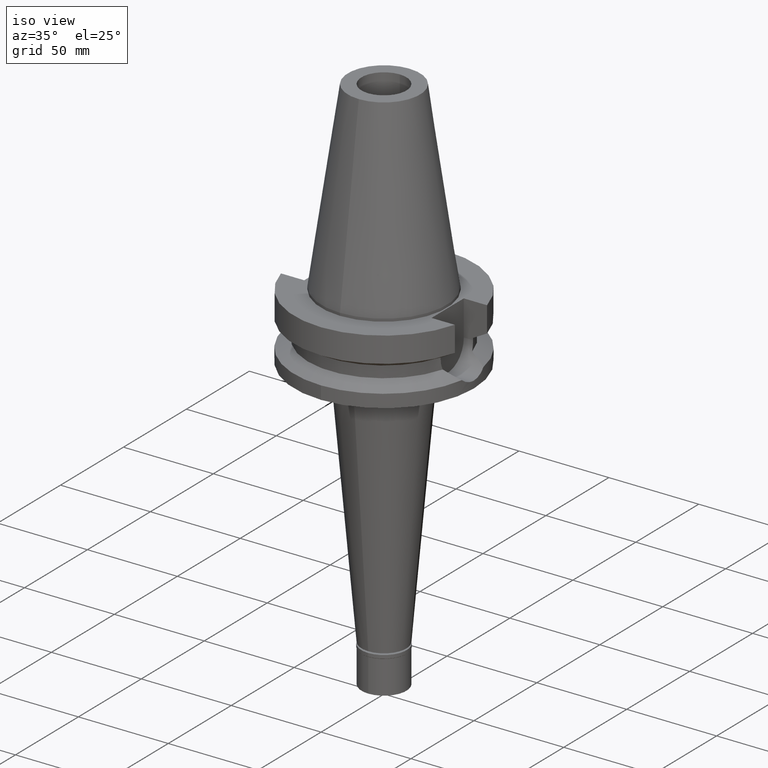
[diagram: clean part render]
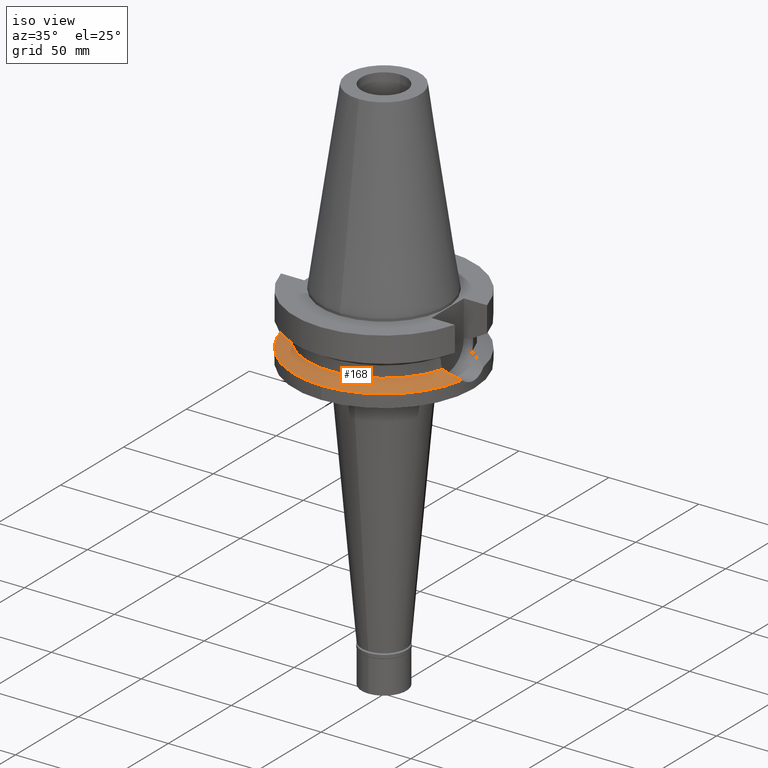
[diagram: same view with one face highlighted and labeled with its STEP entity id]
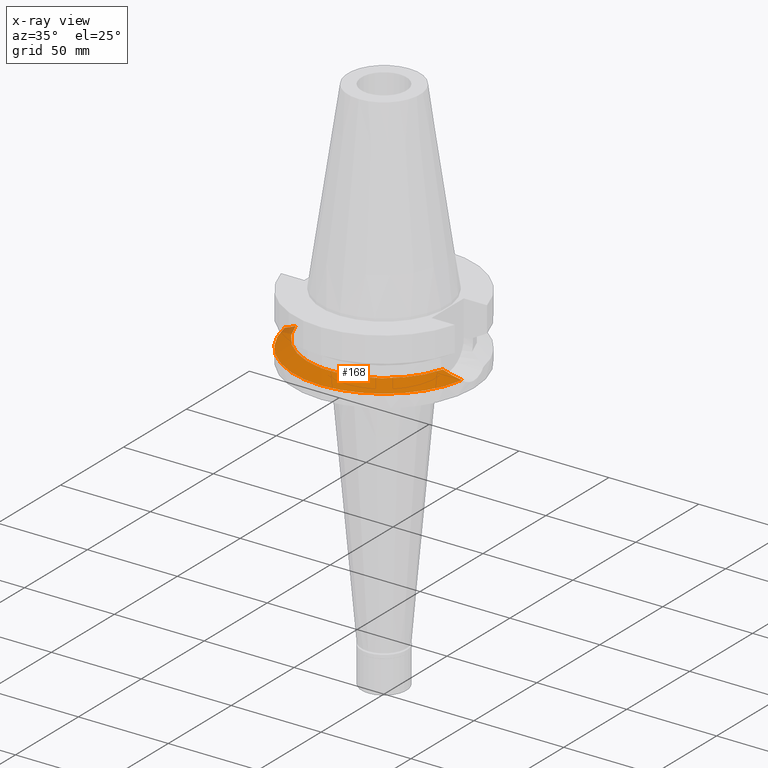
[diagram: x-ray of the same camera — body ghosted, the highlighted face saturated]
A machine part, iso view. The second image highlights one B-rep face of the part: STEP entity #168.
The next image is the same camera in x-ray: the body ghosted, the highlighted face saturated — about 2% of this face is hidden behind the body in this view.
In plain terms, the highlighted conical surface has half-angle 60 deg.
Its self-contained STEP definition (entity closure, byte-faithful):
#19 = DIRECTION ( 'NONE',  ( 0.0000000000000000000, -1.000000000000000000, 0.0000000000000000000 ) ) ;
#21 = CARTESIAN_POINT ( 'NONE',  ( -45.51153680948555547, -10.31571076455013269, -28.81225329104412580 ) ) ;
#77 = B_SPLINE_CURVE_WITH_KNOTS ( 'NONE', 3,
 ( #1958, #921, #1680, #1418, #906, #2631, #217, #1974, #2458, #2441, #2953, #2665, #1924, #2918, #2904 ),
 .UNSPECIFIED., .F., .F.,
 ( 4, 2, 2, 1, 1, 1, 2, 2, 4 ),
 ( 0.0000000000000000000, 0.2499999999999963363, 0.3749999999999946709, 0.4374999999999937828, 0.4687499999999923950, 0.4843749999999920064, 0.4921874999999918954, 0.4999999999999917843, 1.000000000000000000 ),
 .UNSPECIFIED. ) ;
#168 = ADVANCED_FACE ( 'NONE', ( #202 ), #3143, .T. ) ;
#172 = DIRECTION ( 'NONE',  ( 0.0000000000000000000, 0.0000000000000000000, -1.000000000000000000 ) ) ;
#194 = B_SPLINE_CURVE_WITH_KNOTS ( 'NONE', 3,
 ( #1737, #1984, #2962, #709, #222, #2720, #2478, #1191, #21, #1997, #759, #2733, #519, #582, #1317, #1835 ),
 .UNSPECIFIED., .F., .F.,
 ( 4, 2, 2, 1, 1, 1, 1, 2, 2, 4 ),
 ( 0.0000000000000000000, 0.2499999999999817923, 0.3749999999999735767, 0.4374999999999696909, 0.4687499999999678590, 0.4843749999999671374, 0.4921874999999659717, 0.4960937499999655831, 0.4999999999999652500, 1.000000000000000000 ),
 .UNSPECIFIED. ) ;
#202 = FACE_OUTER_BOUND ( 'NONE', #1254, .T. ) ;
#205 = EDGE_CURVE ( 'NONE', #2365, #485, #3086, .T. ) ;
#217 = CARTESIAN_POINT ( 'NONE',  ( 44.89770569920985110, -10.54372386778587511, -28.49665966321981614 ) ) ;
#221 = DIRECTION ( 'NONE',  ( 0.0000000000000000000, 0.0000000000000000000, 1.000000000000000000 ) ) ;
#222 = CARTESIAN_POINT ( 'NONE',  ( -46.77591822485125306, -9.802183307149345382, -29.46222612251301953 ) ) ;
#285 = CARTESIAN_POINT ( 'NONE',  ( -40.85052569294000335, -11.72538061688000077, -26.40718074535000426 ) ) ;
#343 = VERTEX_POINT ( 'NONE', #948 ) ;
#354 = CARTESIAN_POINT ( 'NONE',  ( 0.0000000000000000000, 0.0000000000000000000, -30.73730776426999967 ) ) ;
#401 = EDGE_CURVE ( 'NONE', #1060, #343, #926, .T. ) ;
#450 = AXIS2_PLACEMENT_3D ( 'NONE', #354, #1820, #1606 ) ;
#485 = VERTEX_POINT ( 'NONE', #2257 ) ;
#519 = CARTESIAN_POINT ( 'NONE',  ( -45.36036240325719149, -10.37294733292019799, -28.73449114628315115 ) ) ;
#581 = CARTESIAN_POINT ( 'NONE',  ( 0.0000000000000000000, -50.00000000000000000, -30.73730776426999967 ) ) ;
#582 = CARTESIAN_POINT ( 'NONE',  ( -44.04299288609625762, -10.86792182048281141, -28.05681832449124258 ) ) ;
#648 = EDGE_CURVE ( 'NONE', #485, #1060, #194, .T. ) ;
#658 = CARTESIAN_POINT ( 'NONE',  ( 0.0000000000000000000, 0.0000000000000000000, -28.57224425480999841 ) ) ;
#708 = DIRECTION ( 'NONE',  ( 0.0000000000000000000, -1.000000000000000000, 0.0000000000000000000 ) ) ;
#709 = CARTESIAN_POINT ( 'NONE',  ( -47.11300662444745768, -9.652607655461894254, -29.63533319679338973 ) ) ;
#759 = CARTESIAN_POINT ( 'NONE',  ( -45.39637948587878213, -10.35937567599534681, -28.75301847058063487 ) ) ;
#906 = CARTESIAN_POINT ( 'NONE',  ( 44.08855951610289736, -10.82339110689108175, -28.08013241714420971 ) ) ;
#909 = DIRECTION ( 'NONE',  ( 0.0000000000000000000, -1.000000000000000000, 0.0000000000000000000 ) ) ;
#921 = CARTESIAN_POINT ( 'NONE',  ( 41.72693822474042946, -11.52185270305650100, -26.86112029419637537 ) ) ;
#926 = CIRCLE ( 'NONE', #1345, 42.50000000000000000 ) ;
#948 = CARTESIAN_POINT ( 'NONE',  ( 40.85052569294000335, -11.72538061688000077, -26.40718074535000426 ) ) ;
#977 = AXIS2_PLACEMENT_3D ( 'NONE', #658, #172, #909 ) ;
#1060 = VERTEX_POINT ( 'NONE', #285 ) ;
#1164 = ORIENTED_EDGE ( 'NONE', *, *, #205, .F. ) ;
#1188 = DIRECTION ( 'NONE',  ( 0.0000000000000000000, 0.0000000000000000000, -1.000000000000000000 ) ) ;
#1191 = CARTESIAN_POINT ( 'NONE',  ( -45.67171378266974102, -10.25422400388750432, -28.89463801037553026 ) ) ;
#1225 = CARTESIAN_POINT ( 'NONE',  ( 0.0000000000000000000, 0.0000000000000000000, -26.40718074535000426 ) ) ;
#1254 = EDGE_LOOP ( 'NONE', ( #1164, #2707, #2630, #2802, #2803 ) ) ;
#1317 = CARTESIAN_POINT ( 'NONE',  ( -42.54311803825711280, -11.33231253935101712, -27.28386219128601908 ) ) ;
#1345 = AXIS2_PLACEMENT_3D ( 'NONE', #1225, #221, #19 ) ;
#1418 = CARTESIAN_POINT ( 'NONE',  ( 43.71407141783095796, -10.94471731160054340, -27.88717304744827885 ) ) ;
#1606 = DIRECTION ( 'NONE',  ( 0.9852500129747439050, -0.1711210446826074982, 0.0000000000000000000 ) ) ;
#1652 = CARTESIAN_POINT ( 'NONE',  ( 0.0000000000000000000, 0.0000000000000000000, -30.73730776426999967 ) ) ;
#1680 = CARTESIAN_POINT ( 'NONE',  ( 42.55237622243823381, -11.29885117534007577, -27.28789971618667565 ) ) ;
#1737 = CARTESIAN_POINT ( 'NONE',  ( -49.26250064874000145, -8.556052234130000045, -30.73730776426999967 ) ) ;
#1757 = AXIS2_PLACEMENT_3D ( 'NONE', #1652, #1188, #708 ) ;
#1815 = EDGE_CURVE ( 'NONE', #3033, #2365, #2874, .T. ) ;
#1820 = DIRECTION ( 'NONE',  ( 0.0000000000000000000, 0.0000000000000000000, -1.000000000000000000 ) ) ;
#1835 = CARTESIAN_POINT ( 'NONE',  ( -40.85052569294000335, -11.72538061688000077, -26.40718074535000426 ) ) ;
#1924 = CARTESIAN_POINT ( 'NONE',  ( 46.91819693261099644, -9.778932570418875869, -29.53587010882205277 ) ) ;
#1958 = CARTESIAN_POINT ( 'NONE',  ( 40.85052569294000335, -11.72538061688000077, -26.40718074535000426 ) ) ;
#1974 = CARTESIAN_POINT ( 'NONE',  ( 45.20029375669412275, -10.43277920227186151, -28.65231836164236157 ) ) ;
#1984 = CARTESIAN_POINT ( 'NONE',  ( -48.69891583527445533, -8.879474368004313334, -30.44867442328018470 ) ) ;
#1997 = CARTESIAN_POINT ( 'NONE',  ( -45.43099472295201480, -10.34629958904202596, -28.77082437957606942 ) ) ;
#2098 = EDGE_CURVE ( 'NONE', #343, #3033, #77, .T. ) ;
#2137 = CARTESIAN_POINT ( 'NONE',  ( 49.26250064874000145, -8.556052234130000045, -30.73730776426999967 ) ) ;
#2257 = CARTESIAN_POINT ( 'NONE',  ( -49.26250064874000145, -8.556052234130000045, -30.73730776426999967 ) ) ;
#2365 = VERTEX_POINT ( 'NONE', #581 ) ;
#2441 = CARTESIAN_POINT ( 'NONE',  ( 45.41299327599489999, -10.35298971296732695, -28.76172030402786106 ) ) ;
#2458 = CARTESIAN_POINT ( 'NONE',  ( 45.34949703306094193, -10.37697435421812386, -28.72906210724613274 ) ) ;
#2478 = CARTESIAN_POINT ( 'NONE',  ( -45.98843892950645085, -10.13003563245722560, -29.05751307446865539 ) ) ;
#2630 = ORIENTED_EDGE ( 'NONE', *, *, #2098, .F. ) ;
#2631 = CARTESIAN_POINT ( 'NONE',  ( 44.63117621322226825, -10.63758336879782540, -28.35949565953447404 ) ) ;
#2665 = CARTESIAN_POINT ( 'NONE',  ( 45.47510506110310047, -10.32942755282031477, -28.79366590978033358 ) ) ;
#2707 = ORIENTED_EDGE ( 'NONE', *, *, #1815, .F. ) ;
#2720 = CARTESIAN_POINT ( 'NONE',  ( -46.25369682759787793, -10.02157968383447439, -29.19386665822117166 ) ) ;
#2733 = CARTESIAN_POINT ( 'NONE',  ( -45.37328106116603266, -10.36808561072752077, -28.74113660982457574 ) ) ;
#2802 = ORIENTED_EDGE ( 'NONE', *, *, #401, .F. ) ;
#2803 = ORIENTED_EDGE ( 'NONE', *, *, #648, .F. ) ;
#2874 = CIRCLE ( 'NONE', #450, 50.00000000000000000 ) ;
#2904 = CARTESIAN_POINT ( 'NONE',  ( 49.26250064874000145, -8.556052234130000045, -30.73730776426999967 ) ) ;
#2918 = CARTESIAN_POINT ( 'NONE',  ( 48.17326165735402554, -9.181129401709947402, -30.17946681166138490 ) ) ;
#2953 = CARTESIAN_POINT ( 'NONE',  ( 45.45522454498060938, -10.33698510760108213, -28.78344095862349761 ) ) ;
#2962 = CARTESIAN_POINT ( 'NONE',  ( -48.09109422751811280, -9.195454861103204536, -30.13726687825376871 ) ) ;
#3033 = VERTEX_POINT ( 'NONE', #2137 ) ;
#3086 = CIRCLE ( 'NONE', #1757, 50.00000000000000000 ) ;
#3143 = CONICAL_SURFACE ( 'NONE', #977, 46.25000000000000000, 1.047197551196400456 ) ;